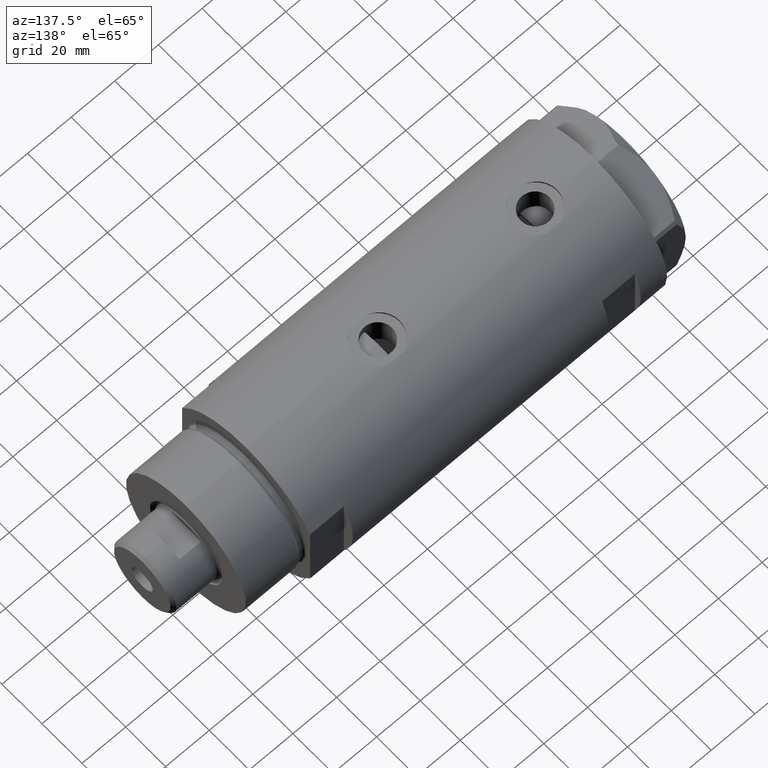
[diagram: clean part render]
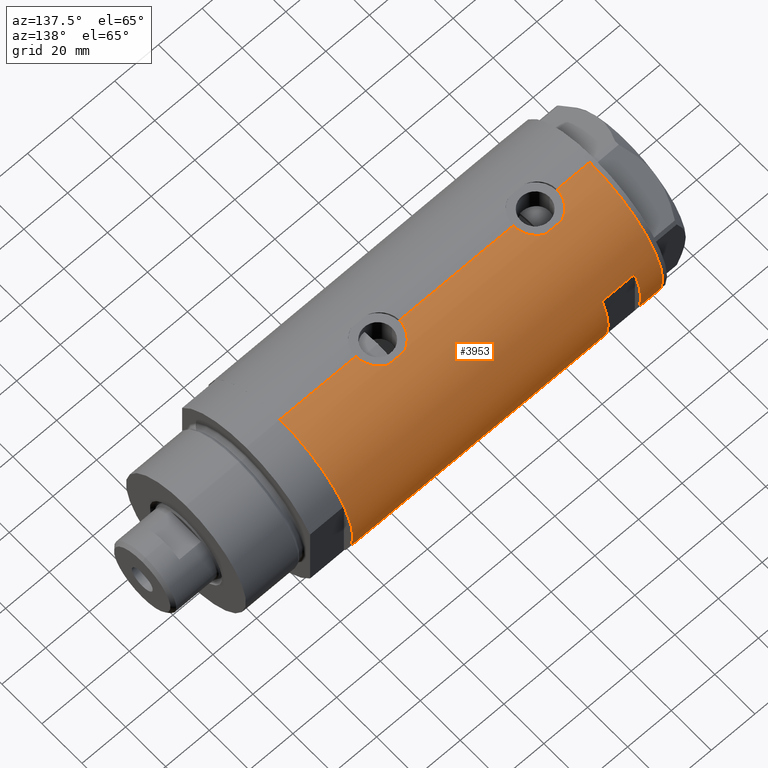
[diagram: same view with one face highlighted and labeled with its STEP entity id]
A machine part, auxiliary view. The second image highlights one B-rep face of the part: STEP entity #3953.
In plain terms, the highlighted cylindrical surface (partial cylindrical patch) has radius 36.5 mm, axis along (-1, -0, 0).
Its self-contained STEP definition (entity closure, byte-faithful):
#4 = LINE ( 'NONE', #3319, #3517 ) ;
#7 = CARTESIAN_POINT ( 'NONE',  ( -35.99700617875954123, 6.038972911021588175, -33.05166814201680126 ) ) ;
#12 = B_SPLINE_CURVE_WITH_KNOTS ( 'NONE', 3,
 ( #2128, #4035, #3339, #720, #1766, #360, #3318, #2582, #4060, #743, #4253, #793, #1551, #1277, #3134, #2352, #2047, #2407, #2723, #1660, #2971, #4606, #3828, #3515, #3883, #4202, #1878, #3026, #523, #937, #3732, #4496, #2000, #3114, #1308, #3472, #210, #432, #2023, #46, #1905, #574, #3360 ),
 .UNSPECIFIED., .F., .F.,
 ( 4, 2, 2, 2, 2, 2, 2, 2, 1, 2, 2, 2, 2, 2, 2, 2, 2, 2, 2, 2, 2, 4 ),
 ( 3.433138148695874385E-19, 0.001223527801214175162, 0.001835291701821259707, 0.002447055602428344686, 0.003670583403642507271, 0.004894111204856668555, 0.006117639006070830707, 0.006729402906677911349, 0.007341166807284992858, 0.007952930707892073500, 0.008564694608499153275, 0.009788222409713297212, 0.01101175021092743941, 0.01223527801214157988, 0.01284704191274865098, 0.01345880581335572035, 0.01468233361456986082, 0.01590586141578400128, 0.01651762531639107065, 0.01712938921699814002, 0.01835291701821228222, 0.01957644481942642095 ),
 .UNSPECIFIED. ) ;
#25 = LINE ( 'NONE', #721, #813 ) ;
#27 = CARTESIAN_POINT ( 'NONE',  ( -36.50000000000000000, 0.4083036190459291559, -40.92499999999999716 ) ) ;
#40 = VERTEX_POINT ( 'NONE', #2114 ) ;
#46 = CARTESIAN_POINT ( 'NONE',  ( -36.46598788992681506, 1.625721481788703571, 40.92627953286163489 ) ) ;
#51 = CARTESIAN_POINT ( 'NONE',  ( 36.50000000000000000, 4.344611676915099379E-19, -16.17499999999999361 ) ) ;
#81 = CARTESIAN_POINT ( 'NONE',  ( -35.96793274302673638, 6.210029014836887740, -33.85805762320680401 ) ) ;
#101 = CARTESIAN_POINT ( 'NONE',  ( 35.69321149401851301, 7.633476302278304537, -19.71036927833556973 ) ) ;
#120 = EDGE_CURVE ( 'NONE', #3703, #892, #2663, .T. ) ;
#143 = VECTOR ( 'NONE', #3879, 1000.000000000000000 ) ;
#145 = CARTESIAN_POINT ( 'NONE',  ( 0.000000000000000000, 0.000000000000000000, -70.97499999999999432 ) ) ;
#163 = CARTESIAN_POINT ( 'NONE',  ( 35.34894515018993388, 9.096104616284849342, 41.79035916533457140 ) ) ;
#210 = CARTESIAN_POINT ( 'NONE',  ( -36.39522946636255085, 2.769519034821244841, 41.36836076268728135 ) ) ;
#301 = CARTESIAN_POINT ( 'NONE',  ( 0.000000000000000000, 0.000000000000000000, 60.97499999999998721 ) ) ;
#303 = VECTOR ( 'NONE', #2077, 1000.000000000000000 ) ;
#307 = B_SPLINE_CURVE_WITH_KNOTS ( 'NONE', 3,
 ( #413, #1171, #3736, #101, #798, #2684, #2617, #2659, #747, #778, #2269, #4519, #2586, #1483, #1882, #436, #1211, #1862, #3343, #51 ),
 .UNSPECIFIED., .F., .F.,
 ( 4, 2, 2, 2, 2, 2, 2, 2, 2, 4 ),
 ( 0.000000000000000000, 0.002977391289382863831, 0.003721739111728580331, 0.004466086934074297264, 0.005954782578765729396, 0.007443478223457160661, 0.008932173868148591059, 0.009676521690494304523, 0.01042086951284001799, 0.01190956515753144491 ),
 .UNSPECIFIED. ) ;
#310 = VERTEX_POINT ( 'NONE', #2786 ) ;
#312 = VERTEX_POINT ( 'NONE', #4215 ) ;
#339 = DIRECTION ( 'NONE',  ( 0.000000000000000000, 0.000000000000000000, 1.000000000000000000 ) ) ;
#360 = CARTESIAN_POINT ( 'NONE',  ( -36.44504802628534179, 2.011764947064737186, 52.89593644908518399 ) ) ;
#394 = CARTESIAN_POINT ( 'NONE',  ( -36.09643313249888763, 5.413601294342278436, -37.80507773391853021 ) ) ;
#409 = CARTESIAN_POINT ( 'NONE',  ( 36.50000000000000000, 0.000000000000000000, 35.97499999999999432 ) ) ;
#412 = CARTESIAN_POINT ( 'NONE',  ( -36.26643311080166399, 4.132772529026635944, -29.96880594730117053 ) ) ;
#413 = CARTESIAN_POINT ( 'NONE',  ( 35.29999999999999716, 9.282241108697837362, -22.45478495245234640 ) ) ;
#420 = DIRECTION ( 'NONE',  ( -0.000000000000000000, -0.000000000000000000, -1.000000000000000000 ) ) ;
#421 = EDGE_LOOP ( 'NONE', ( #3681, #939, #3550, #1537, #1270, #1870, #1259, #980, #3860, #2212, #2310, #430, #2594, #4756, #3403, #3041 ) ) ;
#430 = ORIENTED_EDGE ( 'NONE', *, *, #1714, .F. ) ;
#432 = CARTESIAN_POINT ( 'NONE',  ( -36.40902375114222167, 2.582415566883928815, 41.27978308530310869 ) ) ;
#433 = CYLINDRICAL_SURFACE ( 'NONE', #4368, 36.50000000000000000 ) ;
#435 = CARTESIAN_POINT ( 'NONE',  ( 36.29420020483472342, 3.877527130731370342, -35.39598974400293230 ) ) ;
#436 = CARTESIAN_POINT ( 'NONE',  ( 36.44688397185922213, 1.983417953489136076, -16.37050042351748047 ) ) ;
#441 = DIRECTION ( 'NONE',  ( 0.000000000000000000, 0.000000000000000000, 1.000000000000000000 ) ) ;
#463 = CARTESIAN_POINT ( 'NONE',  ( 36.00287854058831272, 6.017835360302998815, -34.17688117181725005 ) ) ;
#523 = CARTESIAN_POINT ( 'NONE',  ( -36.09643313249889474, 5.413601294342280212, 43.84492226608146836 ) ) ;
#539 = EDGE_CURVE ( 'NONE', #312, #4047, #2678, .T. ) ;
#547 = CARTESIAN_POINT ( 'NONE',  ( 35.52347503888660896, 8.410566959990466884, 51.47453967259340146 ) ) ;
#559 = VERTEX_POINT ( 'NONE', #4699 ) ;
#574 = CARTESIAN_POINT ( 'NONE',  ( -36.50000000000000711, 0.4083036190459268799, 40.72500000000001563 ) ) ;
#601 = CIRCLE ( 'NONE', #3304, 36.50000000000000000 ) ;
#618 = CIRCLE ( 'NONE', #3997, 36.50000000000000000 ) ;
#619 = CARTESIAN_POINT ( 'NONE',  ( -36.50000000000000000, 4.469960816887838430E-15, -70.97499999999999432 ) ) ;
#659 = CARTESIAN_POINT ( 'NONE',  ( -14.49137674618942739, 33.50000000000000000, 60.97499999999998721 ) ) ;
#684 = EDGE_CURVE ( 'NONE', #4047, #1163, #2653, .T. ) ;
#701 = LINE ( 'NONE', #3341, #828 ) ;
#720 = CARTESIAN_POINT ( 'NONE',  ( -36.47290054070997911, 1.420408912806973456, 53.06486981660016511 ) ) ;
#721 = CARTESIAN_POINT ( 'NONE',  ( 14.49137674618942739, 33.50000000000000000, -70.97499999999999432 ) ) ;
#723 = CARTESIAN_POINT ( 'NONE',  ( -35.96094343308264740, 6.249843792257632202, -34.26412889655428984 ) ) ;
#743 = CARTESIAN_POINT ( 'NONE',  ( -36.30200038006938001, 3.811959488093744408, 51.94472104836007986 ) ) ;
#746 = CARTESIAN_POINT ( 'NONE',  ( -36.49292802938587243, 0.8230716655928912440, -40.88406938753515618 ) ) ;
#747 = CARTESIAN_POINT ( 'NONE',  ( 36.00145998247695900, 6.026272765084661032, -18.17949611787612341 ) ) ;
#775 = CARTESIAN_POINT ( 'NONE',  ( 35.59366931936805400, 8.089554397885871495, 40.07572680912185348 ) ) ;
#777 = CARTESIAN_POINT ( 'NONE',  ( -36.50000000000000711, 0.4137727629436733223, -28.42500000000000782 ) ) ;
#778 = CARTESIAN_POINT ( 'NONE',  ( 36.12877841835538106, 5.208882251161927712, -17.62446835209708240 ) ) ;
#793 = CARTESIAN_POINT ( 'NONE',  ( -36.19624103943463922, 4.708090268046846383, 51.10561221446138092 ) ) ;
#797 = CARTESIAN_POINT ( 'NONE',  ( 36.50000000000000000, 1.005842003469122004, -36.17500000000001137 ) ) ;
#798 = CARTESIAN_POINT ( 'NONE',  ( 35.72794581931695035, 7.469526493268207723, -19.52160203271736805 ) ) ;
#810 = CARTESIAN_POINT ( 'NONE',  ( -14.49137674618942739, 33.50000000000000000, -70.97499999999999432 ) ) ;
#813 = VECTOR ( 'NONE', #4723, 1000.000000000000000 ) ;
#814 = FACE_BOUND ( 'NONE', #4181, .T. ) ;
#816 = CARTESIAN_POINT ( 'NONE',  ( -36.36688032967140316, 3.133094607697486822, -29.25163567362491435 ) ) ;
#828 = VECTOR ( 'NONE', #339, 1000.000000000000000 ) ;
#846 = CARTESIAN_POINT ( 'NONE',  ( 35.40502660484482789, 8.876998817796913244, -30.80598724071235850 ) ) ;
#892 = VERTEX_POINT ( 'NONE', #897 ) ;
#897 = CARTESIAN_POINT ( 'NONE',  ( -36.50000000000000000, 4.469960816887838430E-15, 70.97499999999999432 ) ) ;
#901 = CARTESIAN_POINT ( 'NONE',  ( 36.49999999999999289, 0.4961820988516187914, 55.97499999999998721 ) ) ;
#922 = CIRCLE ( 'NONE', #3618, 36.50000000000000000 ) ;
#923 = CARTESIAN_POINT ( 'NONE',  ( 35.52737867031126484, 8.373910777960912100, -31.66360356717066438 ) ) ;
#937 = CARTESIAN_POINT ( 'NONE',  ( -36.11206433103227198, 5.308658295084042855, 43.67015351959022951 ) ) ;
#939 = ORIENTED_EDGE ( 'NONE', *, *, #3746, .T. ) ;
#946 = CARTESIAN_POINT ( 'NONE',  ( 36.50000000000000000, 0.000000000000000000, -36.17499999999999716 ) ) ;
#965 = CARTESIAN_POINT ( 'NONE',  ( 0.000000000000000000, 0.000000000000000000, 70.97499999999999432 ) ) ;
#967 = DIRECTION ( 'NONE',  ( -0.000000000000000000, -0.000000000000000000, 1.000000000000000000 ) ) ;
#980 = ORIENTED_EDGE ( 'NONE', *, *, #3714, .F. ) ;
#981 = CARTESIAN_POINT ( 'NONE',  ( 0.000000000000000000, 0.000000000000000000, -70.97499999999999432 ) ) ;
#1092 = CARTESIAN_POINT ( 'NONE',  ( -36.16083474549353838, 4.969527450313378836, -38.48705319122749557 ) ) ;
#1105 = VERTEX_POINT ( 'NONE', #2545 ) ;
#1114 = CARTESIAN_POINT ( 'NONE',  ( -36.11206433103227198, 5.308658295084042855, -37.97984648040976907 ) ) ;
#1137 = CARTESIAN_POINT ( 'NONE',  ( 36.36225053217121683, 3.177096004138048713, 36.48983975524019741 ) ) ;
#1142 = CARTESIAN_POINT ( 'NONE',  ( -36.47290054070996490, 1.420408912806972124, -28.58513018339982992 ) ) ;
#1163 = VERTEX_POINT ( 'NONE', #659 ) ;
#1168 = CARTESIAN_POINT ( 'NONE',  ( 36.49999999999999289, 1.005842003469123558, 35.97500000000000142 ) ) ;
#1170 = CARTESIAN_POINT ( 'NONE',  ( -36.01524716445113938, 5.931039972055512699, -36.68830731864657935 ) ) ;
#1171 = CARTESIAN_POINT ( 'NONE',  ( 35.39804469700247580, 8.909380959553010015, -21.52446835517155677 ) ) ;
#1191 = CARTESIAN_POINT ( 'NONE',  ( -35.98846897517730525, 6.089479646546502423, -33.25265108453479002 ) ) ;
#1210 = CARTESIAN_POINT ( 'NONE',  ( 35.34894515018994099, 9.096104616284847566, -30.35964083466541297 ) ) ;
#1211 = CARTESIAN_POINT ( 'NONE',  ( 36.45954139109321090, 1.735915671103594793, -16.32363218852989917 ) ) ;
#1213 = EDGE_CURVE ( 'NONE', #4598, #2851, #1408, .T. ) ;
#1214 = EDGE_CURVE ( 'NONE', #3587, #1892, #3079, .T. ) ;
#1256 = CARTESIAN_POINT ( 'NONE',  ( 35.93456089024233790, 6.410413305453381838, 38.28414036795854258 ) ) ;
#1259 = ORIENTED_EDGE ( 'NONE', *, *, #3633, .F. ) ;
#1270 = ORIENTED_EDGE ( 'NONE', *, *, #2696, .F. ) ;
#1277 = CARTESIAN_POINT ( 'NONE',  ( -36.11199073531170001, 5.309184630646989866, 50.27912840766834535 ) ) ;
#1308 = CARTESIAN_POINT ( 'NONE',  ( -36.35033317675380715, 3.306376218664576871, 41.66729280583948025 ) ) ;
#1382 = CARTESIAN_POINT ( 'NONE',  ( -36.50000000000000000, -1.177086652845314172E-16, -28.42499999999999716 ) ) ;
#1408 = B_SPLINE_CURVE_WITH_KNOTS ( 'NONE', 3,
 ( #3409, #777, #2640, #1142, #1553, #1502, #2565, #3664, #816, #4405, #412, #1460, #2951, #2616, #3696, #2934, #4132, #1861, #7, #1191, #81, #723, #3735, #1841, #4476, #1170, #3323, #2974, #394, #1114, #1092, #2249, #2658, #3029, #4113, #2227, #4063, #4444, #3342, #3716, #746, #27, #1881 ),
 .UNSPECIFIED., .F., .F.,
 ( 4, 2, 2, 2, 2, 2, 2, 2, 1, 2, 2, 2, 2, 2, 2, 2, 2, 2, 2, 2, 2, 4 ),
 ( 1.143588582899630405E-19, 0.001223527801214170391, 0.001835291701821256238, 0.002447055602428341217, 0.003670583403642510307, 0.004894111204856679831, 0.006117639006070855860, 0.006729402906677933900, 0.007341166807285011940, 0.007952930707892090847, 0.008564694608499168887, 0.009788222409713304151, 0.01101175021092744288, 0.01223527801214157988, 0.01284704191274864925, 0.01345880581335572035, 0.01468233361456985908, 0.01590586141578399781, 0.01651762531639107065, 0.01712938921699814002, 0.01835291701821227528, 0.01957644481942641401 ),
 .UNSPECIFIED. ) ;
#1460 = CARTESIAN_POINT ( 'NONE',  ( -36.19624103943463211, 4.708090268046848159, -30.54438778553861411 ) ) ;
#1468 = VERTEX_POINT ( 'NONE', #2152 ) ;
#1483 = CARTESIAN_POINT ( 'NONE',  ( 36.40008489419981430, 2.709263960908030011, -16.54581895403608272 ) ) ;
#1502 = CARTESIAN_POINT ( 'NONE',  ( -36.44504802628535600, 2.011764947064735409, -28.75406355091481458 ) ) ;
#1510 = VERTEX_POINT ( 'NONE', #2925 ) ;
#1521 = CARTESIAN_POINT ( 'NONE',  ( 36.18948008481302026, 4.772042575486204363, 37.17322368756843076 ) ) ;
#1525 = CARTESIAN_POINT ( 'NONE',  ( 36.45853166336080875, 1.985123042546143690, -36.02662670417736734 ) ) ;
#1537 = ORIENTED_EDGE ( 'NONE', *, *, #3198, .T. ) ;
#1551 = CARTESIAN_POINT ( 'NONE',  ( -36.16126303108062245, 4.966520032693295228, 50.79141227745282805 ) ) ;
#1553 = CARTESIAN_POINT ( 'NONE',  ( -36.46462099658054257, 1.618684470865504155, -28.63475602975154644 ) ) ;
#1561 = CARTESIAN_POINT ( 'NONE',  ( 35.39804469700246869, 8.909380959553010015, 50.62553164482844181 ) ) ;
#1581 = DIRECTION ( 'NONE',  ( -0.000000000000000000, -0.000000000000000000, -1.000000000000000000 ) ) ;
#1583 = CARTESIAN_POINT ( 'NONE',  ( 36.00145998247697321, 6.026272765084664584, 53.97050388212387872 ) ) ;
#1608 = CARTESIAN_POINT ( 'NONE',  ( 36.48988646280794512, 0.9921857666168147905, 55.93828115134424905 ) ) ;
#1654 = CARTESIAN_POINT ( 'NONE',  ( 36.40008489419980720, 2.709263960908032232, 55.60418104596390521 ) ) ;
#1660 = CARTESIAN_POINT ( 'NONE',  ( -35.98846897517730525, 6.089479646546503311, 48.39734891546520146 ) ) ;
#1714 = EDGE_CURVE ( 'NONE', #559, #2720, #3329, .T. ) ;
#1730 = VERTEX_POINT ( 'NONE', #3548 ) ;
#1766 = CARTESIAN_POINT ( 'NONE',  ( -36.46462099658055678, 1.618684470865505487, 53.01524397024843438 ) ) ;
#1809 = DIRECTION ( 'NONE',  ( 0.000000000000000000, 0.000000000000000000, 1.000000000000000000 ) ) ;
#1841 = CARTESIAN_POINT ( 'NONE',  ( -35.96805604460922723, 6.209309709790233889, -35.49612758268171575 ) ) ;
#1861 = CARTESIAN_POINT ( 'NONE',  ( -36.01679413914728656, 5.919813138266326824, -32.66000308952963849 ) ) ;
#1862 = CARTESIAN_POINT ( 'NONE',  ( 36.48988646280793802, 0.9921857666168134582, -16.21171884865573176 ) ) ;
#1868 = VERTEX_POINT ( 'NONE', #3722 ) ;
#1870 = ORIENTED_EDGE ( 'NONE', *, *, #120, .T. ) ;
#1876 = DIRECTION ( 'NONE',  ( 0.000000000000000000, 0.000000000000000000, 1.000000000000000000 ) ) ;
#1878 = CARTESIAN_POINT ( 'NONE',  ( -36.05296344941216091, 5.695624845616826804, 44.39345143463242493 ) ) ;
#1881 = CARTESIAN_POINT ( 'NONE',  ( -36.50000000000000000, 4.469960493372403714E-15, -40.92500000000000426 ) ) ;
#1882 = CARTESIAN_POINT ( 'NONE',  ( 36.41717583764487642, 2.469534783404758294, -16.48151988824329095 ) ) ;
#1887 = CARTESIAN_POINT ( 'NONE',  ( -36.50000000000000000, 4.469960816887838430E-15, -70.97499999999999432 ) ) ;
#1892 = VERTEX_POINT ( 'NONE', #4120 ) ;
#1905 = CARTESIAN_POINT ( 'NONE',  ( -36.49292802938587243, 0.8230716655928855818, 40.76593061246486371 ) ) ;
#1910 = CARTESIAN_POINT ( 'NONE',  ( 36.26917563968159897, 4.104523505324174870, -35.29715988367473756 ) ) ;
#1923 = CARTESIAN_POINT ( 'NONE',  ( 36.50000000000000000, 4.344610667173140696E-19, 55.97499999999999432 ) ) ;
#1924 = EDGE_CURVE ( 'NONE', #1468, #1868, #4451, .T. ) ;
#1925 = EDGE_CURVE ( 'NONE', #310, #1892, #3035, .T. ) ;
#1964 = CARTESIAN_POINT ( 'NONE',  ( 36.34264078466112124, 3.418717136061406148, 55.38549034040752161 ) ) ;
#2000 = CARTESIAN_POINT ( 'NONE',  ( -36.26695135241005374, 4.128455078791305688, 42.26462408355261147 ) ) ;
#2001 = VECTOR ( 'NONE', #420, 1000.000000000000000 ) ;
#2023 = CARTESIAN_POINT ( 'NONE',  ( -36.44628644024910358, 2.015372769639941275, 41.04471871986416431 ) ) ;
#2047 = CARTESIAN_POINT ( 'NONE',  ( -36.03936508729894683, 5.782103729777507084, 49.37370532603795681 ) ) ;
#2052 = CARTESIAN_POINT ( 'NONE',  ( 35.72860827204724643, 7.471059959301286746, -32.84025150474408861 ) ) ;
#2077 = DIRECTION ( 'NONE',  ( 0.000000000000000000, 0.000000000000000000, 1.000000000000000000 ) ) ;
#2114 = CARTESIAN_POINT ( 'NONE',  ( -36.50000000000000000, 4.469960493369248271E-15, 40.72499999999999432 ) ) ;
#2128 = CARTESIAN_POINT ( 'NONE',  ( -36.50000000000000000, 3.533701851025436616E-16, 53.22499999999999432 ) ) ;
#2131 = EDGE_CURVE ( 'NONE', #1163, #1105, #922, .T. ) ;
#2134 = DIRECTION ( 'NONE',  ( 1.000000000000000000, 1.776356839400250465E-15, 0.000000000000000000 ) ) ;
#2141 = DIRECTION ( 'NONE',  ( 1.000000000000000000, 0.000000000000000000, 0.000000000000000000 ) ) ;
#2152 = CARTESIAN_POINT ( 'NONE',  ( 35.29999999999999716, 9.282241108697837362, 49.69521504754764152 ) ) ;
#2212 = ORIENTED_EDGE ( 'NONE', *, *, #1924, .T. ) ;
#2217 = AXIS2_PLACEMENT_3D ( 'NONE', #4785, #967, #4671 ) ;
#2227 = CARTESIAN_POINT ( 'NONE',  ( -36.36587679577595367, 3.131448301962864722, -40.08782465573618481 ) ) ;
#2245 = CARTESIAN_POINT ( 'NONE',  ( 35.52737867031126484, 8.373910777960910323, 40.48639643282934486 ) ) ;
#2249 = CARTESIAN_POINT ( 'NONE',  ( -36.19597718496778782, 4.710322426433908305, -38.80351610762016179 ) ) ;
#2269 = CARTESIAN_POINT ( 'NONE',  ( 36.18937351723702989, 4.773052864917640470, -17.37364006881155731 ) ) ;
#2271 = EDGE_CURVE ( 'NONE', #310, #559, #307, .T. ) ;
#2294 = CARTESIAN_POINT ( 'NONE',  ( 36.34070350304396868, 3.414301401755545307, -35.57736217375907017 ) ) ;
#2296 = CARTESIAN_POINT ( 'NONE',  ( 36.50000000000000000, 0.000000000000000000, -70.97499999999999432 ) ) ;
#2307 = CARTESIAN_POINT ( 'NONE',  ( 36.12877841835538106, 5.208882251161929489, 54.52553164790293039 ) ) ;
#2310 = ORIENTED_EDGE ( 'NONE', *, *, #2718, .F. ) ;
#2318 = CARTESIAN_POINT ( 'NONE',  ( 35.93456089024233790, 6.410413305453383614, -33.86585963204144889 ) ) ;
#2352 = CARTESIAN_POINT ( 'NONE',  ( -36.06675137892952421, 5.607935153446974574, 49.74181826008757668 ) ) ;
#2370 = VECTOR ( 'NONE', #1876, 1000.000000000000000 ) ;
#2375 = ORIENTED_EDGE ( 'NONE', *, *, #684, .F. ) ;
#2384 = CARTESIAN_POINT ( 'NONE',  ( 35.79766710091576698, 7.135341284989892507, 38.95149479439096041 ) ) ;
#2407 = CARTESIAN_POINT ( 'NONE',  ( -36.01679413914727235, 5.919813138266322383, 48.98999691047036009 ) ) ;
#2436 = DIRECTION ( 'NONE',  ( 1.000000000000000000, 0.000000000000000000, 0.000000000000000000 ) ) ;
#2545 = CARTESIAN_POINT ( 'NONE',  ( 14.49137674618942739, 33.50000000000000000, 60.97499999999998721 ) ) ;
#2547 = B_SPLINE_CURVE_WITH_KNOTS ( 'NONE', 3,
 ( #4219, #1561, #547, #3822, #2766, #3491, #3398, #2699, #1583, #2307, #3107, #3437, #1964, #1654, #3780, #2739, #2717, #1608, #901, #1923 ),
 .UNSPECIFIED., .F., .F.,
 ( 4, 2, 2, 2, 2, 2, 2, 2, 2, 4 ),
 ( 0.000000000000000000, 0.002977391289382842580, 0.003721739111728559948, 0.004466086934074276447, 0.005954782578765711182, 0.007443478223457145916, 0.008932173868148578916, 0.009676521690494297584, 0.01042086951284001452, 0.01190956515753144665 ),
 .UNSPECIFIED. ) ;
#2565 = CARTESIAN_POINT ( 'NONE',  ( -36.43371204571227651, 2.206934156026290061, -28.82402718329002411 ) ) ;
#2582 = CARTESIAN_POINT ( 'NONE',  ( -36.39638105034455151, 2.774378062517170118, 52.59043332699103246 ) ) ;
#2586 = CARTESIAN_POINT ( 'NONE',  ( 36.34264078466111414, 3.418717136061403483, -16.76450965959248052 ) ) ;
#2594 = ORIENTED_EDGE ( 'NONE', *, *, #2271, .F. ) ;
#2612 = CARTESIAN_POINT ( 'NONE',  ( 35.72860827204725354, 7.471059959301286746, 39.30974849525591708 ) ) ;
#2616 = CARTESIAN_POINT ( 'NONE',  ( -36.11199073531170001, 5.309184630646992531, -31.37087159233164968 ) ) ;
#2617 = CARTESIAN_POINT ( 'NONE',  ( 35.83170458557578542, 6.955065627744199119, -18.98558328087534619 ) ) ;
#2637 = CARTESIAN_POINT ( 'NONE',  ( 36.00287854058830561, 6.017835360303004144, 37.97311882818274853 ) ) ;
#2640 = CARTESIAN_POINT ( 'NONE',  ( -36.49297130294514346, 0.8204796224394282911, -28.46568307782264284 ) ) ;
#2653 = LINE ( 'NONE', #810, #2370 ) ;
#2658 = CARTESIAN_POINT ( 'NONE',  ( -36.26695135241003953, 4.128455078791307464, -39.38537591644739422 ) ) ;
#2659 = CARTESIAN_POINT ( 'NONE',  ( 35.93435287561197811, 6.411571491280766644, -18.48511355077157248 ) ) ;
#2663 = LINE ( 'NONE', #1887, #3296 ) ;
#2667 = CARTESIAN_POINT ( 'NONE',  ( 36.50000000000000000, 0.000000000000000000, -70.97499999999999432 ) ) ;
#2678 = CIRCLE ( 'NONE', #2217, 36.50000000000000000 ) ;
#2684 = CARTESIAN_POINT ( 'NONE',  ( 35.79715675463679503, 7.130463293899341082, -19.15944415894004393 ) ) ;
#2696 = EDGE_CURVE ( 'NONE', #3703, #40, #12, .T. ) ;
#2699 = CARTESIAN_POINT ( 'NONE',  ( 35.93435287561198521, 6.411571491280772861, 53.66488644922840479 ) ) ;
#2717 = CARTESIAN_POINT ( 'NONE',  ( 36.45954139109321801, 1.735915671103595681, 55.82636781147009941 ) ) ;
#2718 = EDGE_CURVE ( 'NONE', #2720, #1868, #3751, .T. ) ;
#2720 = VERTEX_POINT ( 'NONE', #3496 ) ;
#2723 = CARTESIAN_POINT ( 'NONE',  ( -35.99700617875954123, 6.038972911021584622, 48.59833185798321153 ) ) ;
#2739 = CARTESIAN_POINT ( 'NONE',  ( 36.44688397185920081, 1.983417953489140517, 55.77949957648250745 ) ) ;
#2748 = EDGE_CURVE ( 'NONE', #3465, #4077, #618, .T. ) ;
#2766 = CARTESIAN_POINT ( 'NONE',  ( 35.72794581931694324, 7.469526493268206835, 52.62839796728263053 ) ) ;
#2786 = CARTESIAN_POINT ( 'NONE',  ( 35.29999999999999716, 9.282241108697837362, -22.45478495245234640 ) ) ;
#2825 = ORIENTED_EDGE ( 'NONE', *, *, #539, .F. ) ;
#2826 = DIRECTION ( 'NONE',  ( 0.000000000000000000, 0.000000000000000000, 1.000000000000000000 ) ) ;
#2851 = VERTEX_POINT ( 'NONE', #3652 ) ;
#2925 = CARTESIAN_POINT ( 'NONE',  ( 36.50000000000000000, 0.000000000000000000, 70.97499999999999432 ) ) ;
#2934 = CARTESIAN_POINT ( 'NONE',  ( -36.06675137892952421, 5.607935153446974574, -31.90818173991240414 ) ) ;
#2951 = CARTESIAN_POINT ( 'NONE',  ( -36.16126303108063667, 4.966520032693300557, -30.85858772254715987 ) ) ;
#2971 = CARTESIAN_POINT ( 'NONE',  ( -35.96793274302675059, 6.210029014836886851, 47.79194237679318746 ) ) ;
#2974 = CARTESIAN_POINT ( 'NONE',  ( -36.06690560274405044, 5.606949625760675460, -37.44385923958931528 ) ) ;
#3001 = VECTOR ( 'NONE', #4530, 1000.000000000000000 ) ;
#3003 = CARTESIAN_POINT ( 'NONE',  ( 35.29999999999999716, 9.282241108697837362, 42.25478495245234711 ) ) ;
#3004 = DIRECTION ( 'NONE',  ( 1.000000000000000000, 0.000000000000000000, 0.000000000000000000 ) ) ;
#3006 = CARTESIAN_POINT ( 'NONE',  ( 36.36225053217120973, 3.177096004138046936, -35.66016024475980828 ) ) ;
#3026 = CARTESIAN_POINT ( 'NONE',  ( -36.06690560274405044, 5.606949625760676348, 44.20614076041067619 ) ) ;
#3029 = CARTESIAN_POINT ( 'NONE',  ( -36.30181775639988473, 3.813582387016782427, -39.64336057574438854 ) ) ;
#3035 = LINE ( 'NONE', #3351, #2001 ) ;
#3041 = ORIENTED_EDGE ( 'NONE', *, *, #3077, .F. ) ;
#3047 = EDGE_CURVE ( 'NONE', #1468, #1730, #2547, .T. ) ;
#3073 = CARTESIAN_POINT ( 'NONE',  ( 35.79766710091576698, 7.135341284989892507, -33.19850520560903107 ) ) ;
#3077 = EDGE_CURVE ( 'NONE', #3465, #3587, #4145, .T. ) ;
#3079 = B_SPLINE_CURVE_WITH_KNOTS ( 'NONE', 3,
 ( #3363, #797, #1525, #3006, #2294, #435, #1910, #3389, #3770, #463, #2318, #3073, #2052, #4260, #923, #846, #1210, #3793 ),
 .UNSPECIFIED., .F., .F.,
 ( 4, 2, 2, 2, 2, 2, 2, 2, 4 ),
 ( -4.119968255444916849E-18, 0.002973648994175701575, 0.003717061242719629788, 0.004460473491263556266, 0.005947297988351410089, 0.007434122485439263045, 0.008920946982527116001, 0.01040777147961496896, 0.01189459597670282191 ),
 .UNSPECIFIED. ) ;
#3107 = CARTESIAN_POINT ( 'NONE',  ( 36.18937351723702989, 4.773052864917639582, 54.77635993118843771 ) ) ;
#3114 = CARTESIAN_POINT ( 'NONE',  ( -36.30181775639987762, 3.813582387016781095, 42.00663942425563135 ) ) ;
#3134 = CARTESIAN_POINT ( 'NONE',  ( -36.09617453667820541, 5.415318599347962447, 50.10206642672910959 ) ) ;
#3141 = CARTESIAN_POINT ( 'NONE',  ( -14.49137674618942917, 33.50000000000000000, 45.97499999999998721 ) ) ;
#3171 = ORIENTED_EDGE ( 'NONE', *, *, #2131, .F. ) ;
#3198 = EDGE_CURVE ( 'NONE', #4598, #40, #3927, .T. ) ;
#3210 = DIRECTION ( 'NONE',  ( 0.000000000000000000, 0.000000000000000000, 1.000000000000000000 ) ) ;
#3296 = VECTOR ( 'NONE', #441, 1000.000000000000000 ) ;
#3304 = AXIS2_PLACEMENT_3D ( 'NONE', #965, #2826, #2436 ) ;
#3318 = CARTESIAN_POINT ( 'NONE',  ( -36.43371204571226940, 2.206934156026286509, 52.82597281670998512 ) ) ;
#3319 = CARTESIAN_POINT ( 'NONE',  ( -36.50000000000000000, 4.469960816887838430E-15, -70.97499999999999432 ) ) ;
#3323 = CARTESIAN_POINT ( 'NONE',  ( -36.05296344941215381, 5.695624845616826804, -37.25654856536755943 ) ) ;
#3329 = LINE ( 'NONE', #3884, #303 ) ;
#3339 = CARTESIAN_POINT ( 'NONE',  ( -36.49297130294515057, 0.8204796224394288462, 53.18431692217734508 ) ) ;
#3341 = CARTESIAN_POINT ( 'NONE',  ( 36.50000000000000000, 0.000000000000000000, -70.97499999999999432 ) ) ;
#3342 = CARTESIAN_POINT ( 'NONE',  ( -36.44628644024908937, 2.015372769639945716, -40.60528128013584137 ) ) ;
#3343 = CARTESIAN_POINT ( 'NONE',  ( 36.50000000000000000, 0.4961820988516189024, -16.17499999999999361 ) ) ;
#3351 = CARTESIAN_POINT ( 'NONE',  ( 35.29999999999999716, 9.282241108697837362, -70.97499999999999432 ) ) ;
#3360 = CARTESIAN_POINT ( 'NONE',  ( -36.50000000000000000, 4.469960493369248271E-15, 40.72499999999999432 ) ) ;
#3363 = CARTESIAN_POINT ( 'NONE',  ( 36.50000000000000000, 0.000000000000000000, -36.17499999999999716 ) ) ;
#3389 = CARTESIAN_POINT ( 'NONE',  ( 36.18948008481302026, 4.772042575486199922, -34.97677631243156782 ) ) ;
#3398 = CARTESIAN_POINT ( 'NONE',  ( 35.83170458557579252, 6.955065627744205337, 53.16441671912465239 ) ) ;
#3403 = ORIENTED_EDGE ( 'NONE', *, *, #1214, .F. ) ;
#3409 = CARTESIAN_POINT ( 'NONE',  ( -36.50000000000000000, -1.177086652845314172E-16, -28.42499999999999716 ) ) ;
#3437 = CARTESIAN_POINT ( 'NONE',  ( 36.29611582693039651, 3.878758190381168536, 55.20544989099550293 ) ) ;
#3447 = FACE_OUTER_BOUND ( 'NONE', #421, .T. ) ;
#3465 = VERTEX_POINT ( 'NONE', #2296 ) ;
#3472 = CARTESIAN_POINT ( 'NONE',  ( -36.36587679577596077, 3.131448301962863390, 41.56217534426380666 ) ) ;
#3491 = CARTESIAN_POINT ( 'NONE',  ( 35.79715675463678082, 7.130463293899343746, 52.99055584105995109 ) ) ;
#3496 = CARTESIAN_POINT ( 'NONE',  ( 36.50000000000000000, 0.000000000000000000, 35.97499999999999432 ) ) ;
#3499 = CARTESIAN_POINT ( 'NONE',  ( -36.50000000000000000, 4.469960816887838430E-15, -70.97499999999999432 ) ) ;
#3515 = CARTESIAN_POINT ( 'NONE',  ( -35.96805604460922012, 6.209309709790230336, 46.15387241731829704 ) ) ;
#3517 = VECTOR ( 'NONE', #1809, 1000.000000000000000 ) ;
#3548 = CARTESIAN_POINT ( 'NONE',  ( 36.50000000000000000, 4.344610667173140696E-19, 55.97499999999999432 ) ) ;
#3550 = ORIENTED_EDGE ( 'NONE', *, *, #1213, .F. ) ;
#3587 = VERTEX_POINT ( 'NONE', #946 ) ;
#3618 = AXIS2_PLACEMENT_3D ( 'NONE', #301, #4745, #2134 ) ;
#3633 = EDGE_CURVE ( 'NONE', #1510, #892, #601, .T. ) ;
#3652 = CARTESIAN_POINT ( 'NONE',  ( -36.50000000000000000, 4.469960493372403714E-15, -40.92500000000000426 ) ) ;
#3664 = CARTESIAN_POINT ( 'NONE',  ( -36.39638105034454441, 2.774378062517171895, -29.05956667300896257 ) ) ;
#3681 = ORIENTED_EDGE ( 'NONE', *, *, #2748, .T. ) ;
#3696 = CARTESIAN_POINT ( 'NONE',  ( -36.09617453667821252, 5.415318599347965112, -31.54793357327088188 ) ) ;
#3703 = VERTEX_POINT ( 'NONE', #4036 ) ;
#3712 = CARTESIAN_POINT ( 'NONE',  ( 36.29420020483470921, 3.877527130731371230, 36.75401025599705918 ) ) ;
#3714 = EDGE_CURVE ( 'NONE', #1730, #1510, #701, .T. ) ;
#3716 = CARTESIAN_POINT ( 'NONE',  ( -36.46598788992681506, 1.625721481788709566, -40.72372046713837790 ) ) ;
#3722 = CARTESIAN_POINT ( 'NONE',  ( 35.29999999999999716, 9.282241108697837362, 42.25478495245234711 ) ) ;
#3732 = CARTESIAN_POINT ( 'NONE',  ( -36.16083474549354548, 4.969527450313378836, 43.16294680877250300 ) ) ;
#3735 = CARTESIAN_POINT ( 'NONE',  ( -35.96088929326157313, 6.250155299092688743, -35.08110494763246123 ) ) ;
#3736 = CARTESIAN_POINT ( 'NONE',  ( 35.52347503888660185, 8.410566959990463332, -20.67546032740656159 ) ) ;
#3737 = EDGE_CURVE ( 'NONE', #1105, #312, #25, .T. ) ;
#3746 = EDGE_CURVE ( 'NONE', #4077, #2851, #4, .T. ) ;
#3751 = B_SPLINE_CURVE_WITH_KNOTS ( 'NONE', 3,
 ( #409, #1168, #4441, #1137, #3863, #3712, #4088, #1521, #4472, #2637, #1256, #2384, #2612, #775, #2245, #4109, #163, #3003 ),
 .UNSPECIFIED., .F., .F.,
 ( 4, 2, 2, 2, 2, 2, 2, 2, 4 ),
 ( 6.505213034913026604E-19, 0.002973648994175712851, 0.003717061242719640196, 0.004460473491263567541, 0.005947297988351423099, 0.007434122485439277790, 0.008920946982527131613, 0.01040777147961498630, 0.01189459597670284099 ),
 .UNSPECIFIED. ) ;
#3770 = CARTESIAN_POINT ( 'NONE',  ( 36.13018480315371761, 5.199168368309158517, -34.73146498208051725 ) ) ;
#3780 = CARTESIAN_POINT ( 'NONE',  ( 36.41717583764486221, 2.469534783404762734, 55.66848011175669342 ) ) ;
#3793 = CARTESIAN_POINT ( 'NONE',  ( 35.29999999999999716, 9.282241108697837362, -29.89521504754764436 ) ) ;
#3822 = CARTESIAN_POINT ( 'NONE',  ( 35.69321149401852011, 7.633476302278306314, 52.43963072166442885 ) ) ;
#3828 = CARTESIAN_POINT ( 'NONE',  ( -35.96088929326156602, 6.250155299092687855, 46.56889505236755156 ) ) ;
#3860 = ORIENTED_EDGE ( 'NONE', *, *, #3047, .F. ) ;
#3863 = CARTESIAN_POINT ( 'NONE',  ( 36.34070350304396868, 3.414301401755547083, 36.57263782624092840 ) ) ;
#3879 = DIRECTION ( 'NONE',  ( 0.000000000000000000, 0.000000000000000000, 1.000000000000000000 ) ) ;
#3883 = CARTESIAN_POINT ( 'NONE',  ( -35.99530513653994745, 6.049346314076206710, 45.35167416964165454 ) ) ;
#3884 = CARTESIAN_POINT ( 'NONE',  ( 36.50000000000000000, 0.000000000000000000, -70.97499999999999432 ) ) ;
#3927 = LINE ( 'NONE', #619, #143 ) ;
#3931 = VECTOR ( 'NONE', #1581, 1000.000000000000000 ) ;
#3953 = ADVANCED_FACE ( 'NONE', ( #814, #3447 ), #433, .T. ) ;
#3997 = AXIS2_PLACEMENT_3D ( 'NONE', #981, #3210, #2141 ) ;
#4035 = CARTESIAN_POINT ( 'NONE',  ( -36.50000000000000711, 0.4137727629436733778, 53.22500000000001563 ) ) ;
#4036 = CARTESIAN_POINT ( 'NONE',  ( -36.50000000000000000, 3.533701851025436616E-16, 53.22499999999999432 ) ) ;
#4047 = VERTEX_POINT ( 'NONE', #3141 ) ;
#4060 = CARTESIAN_POINT ( 'NONE',  ( -36.36688032967139605, 3.133094607697483269, 52.39836432637505936 ) ) ;
#4063 = CARTESIAN_POINT ( 'NONE',  ( -36.39522946636255085, 2.769519034821246173, -40.28163923731271723 ) ) ;
#4077 = VERTEX_POINT ( 'NONE', #3499 ) ;
#4088 = CARTESIAN_POINT ( 'NONE',  ( 36.26917563968162739, 4.104523505324179311, 36.85284011632527523 ) ) ;
#4109 = CARTESIAN_POINT ( 'NONE',  ( 35.40502660484482789, 8.876998817796915020, 41.34401275928764363 ) ) ;
#4113 = CARTESIAN_POINT ( 'NONE',  ( -36.35033317675380005, 3.306376218664576871, -39.98270719416050412 ) ) ;
#4120 = CARTESIAN_POINT ( 'NONE',  ( 35.29999999999999716, 9.282241108697837362, -29.89521504754764436 ) ) ;
#4132 = CARTESIAN_POINT ( 'NONE',  ( -36.03936508729894683, 5.782103729777504419, -32.27629467396202756 ) ) ;
#4145 = LINE ( 'NONE', #2667, #3001 ) ;
#4174 = CARTESIAN_POINT ( 'NONE',  ( 35.29999999999999716, 9.282241108697837362, -70.97499999999999432 ) ) ;
#4181 = EDGE_LOOP ( 'NONE', ( #2825, #4262, #3171, #2375 ) ) ;
#4202 = CARTESIAN_POINT ( 'NONE',  ( -36.01524716445113228, 5.931039972055513587, 44.96169268135341923 ) ) ;
#4215 = CARTESIAN_POINT ( 'NONE',  ( 14.49137674618942917, 33.50000000000000000, 45.97499999999998721 ) ) ;
#4219 = CARTESIAN_POINT ( 'NONE',  ( 35.29999999999999716, 9.282241108697837362, 49.69521504754764152 ) ) ;
#4253 = CARTESIAN_POINT ( 'NONE',  ( -36.26643311080167109, 4.132772529026635056, 51.68119405269884226 ) ) ;
#4260 = CARTESIAN_POINT ( 'NONE',  ( 35.59366931936804690, 8.089554397885873271, -32.07427319087813800 ) ) ;
#4262 = ORIENTED_EDGE ( 'NONE', *, *, #3737, .F. ) ;
#4368 = AXIS2_PLACEMENT_3D ( 'NONE', #145, #4515, #3004 ) ;
#4405 = CARTESIAN_POINT ( 'NONE',  ( -36.30200038006937291, 3.811959488093745740, -29.70527895163993648 ) ) ;
#4441 = CARTESIAN_POINT ( 'NONE',  ( 36.45853166336078743, 1.985123042546143690, 36.12337329582261702 ) ) ;
#4444 = CARTESIAN_POINT ( 'NONE',  ( -36.40902375114221456, 2.582415566883934588, -40.37021691469687568 ) ) ;
#4451 = LINE ( 'NONE', #4174, #3931 ) ;
#4472 = CARTESIAN_POINT ( 'NONE',  ( 36.13018480315371761, 5.199168368309162958, 37.41853501791948844 ) ) ;
#4476 = CARTESIAN_POINT ( 'NONE',  ( -35.99530513653993324, 6.049346314076205822, -36.29832583035831561 ) ) ;
#4496 = CARTESIAN_POINT ( 'NONE',  ( -36.19597718496778072, 4.710322426433907417, 42.84648389237985100 ) ) ;
#4515 = DIRECTION ( 'NONE',  ( 0.000000000000000000, 0.000000000000000000, 1.000000000000000000 ) ) ;
#4519 = CARTESIAN_POINT ( 'NONE',  ( 36.29611582693040361, 3.878758190381168092, -16.94455010900449921 ) ) ;
#4530 = DIRECTION ( 'NONE',  ( 0.000000000000000000, 0.000000000000000000, 1.000000000000000000 ) ) ;
#4598 = VERTEX_POINT ( 'NONE', #1382 ) ;
#4606 = CARTESIAN_POINT ( 'NONE',  ( -35.96094343308266161, 6.249843792257632202, 47.38587110344570164 ) ) ;
#4671 = DIRECTION ( 'NONE',  ( -1.000000000000000000, -1.776356839400250465E-15, 0.000000000000000000 ) ) ;
#4699 = CARTESIAN_POINT ( 'NONE',  ( 36.50000000000000000, 4.344611676915099379E-19, -16.17499999999999361 ) ) ;
#4723 = DIRECTION ( 'NONE',  ( -0.000000000000000000, -0.000000000000000000, -1.000000000000000000 ) ) ;
#4745 = DIRECTION ( 'NONE',  ( -0.000000000000000000, -0.000000000000000000, -1.000000000000000000 ) ) ;
#4756 = ORIENTED_EDGE ( 'NONE', *, *, #1925, .T. ) ;
#4785 = CARTESIAN_POINT ( 'NONE',  ( 0.000000000000000000, 0.000000000000000000, 45.97499999999998721 ) ) ;